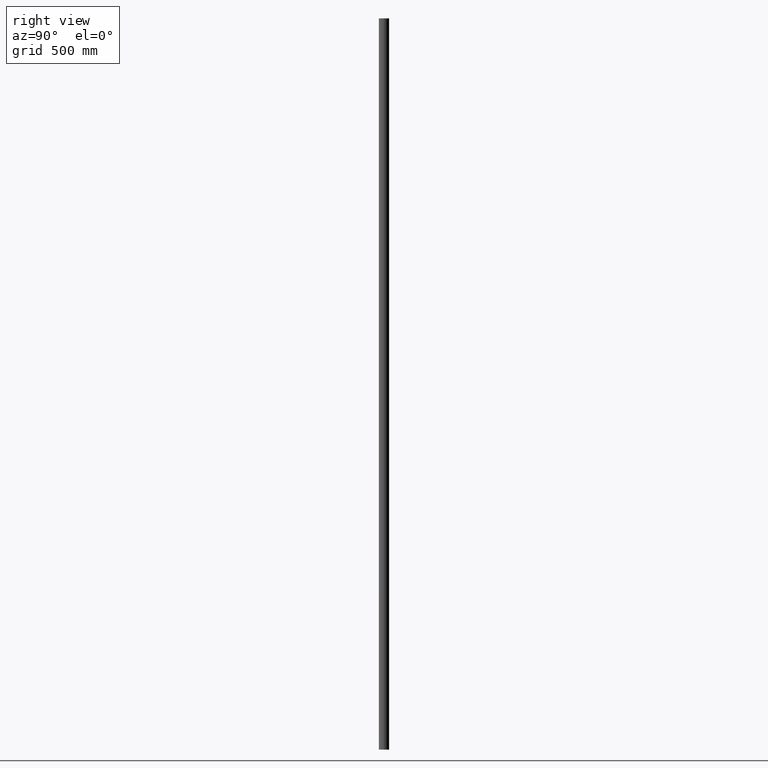
[diagram: clean part render]
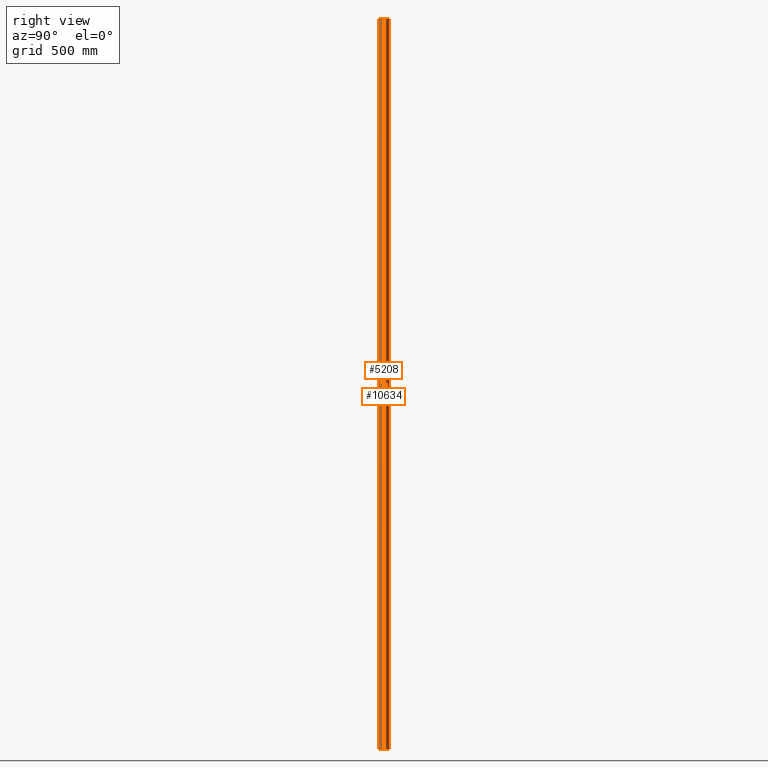
[diagram: same view with one multi-face feature highlighted, each face labeled with its STEP entity id]
A machine part, right view. The highlighted faces form ONE feature: a constant-radius fillet chain: 2 tangent blend faces with common blend radius 21 mm. The faces share edges in the B-rep.
Their STEP definitions:
[1] entity #10634 (Cylinder):
#251 = DIRECTION ( 'NONE',  ( 1.000000000000000000, 0.000000000000000000, 0.000000000000000000 ) ) ;
#441 = CARTESIAN_POINT ( 'NONE',  ( 0.000000000000000000, 0.000000000000000000, 1500.000000000000000 ) ) ;
#575 = DIRECTION ( 'NONE',  ( 0.000000000000000000, 0.000000000000000000, 1.000000000000000000 ) ) ;
#791 = VERTEX_POINT ( 'NONE', #5051 ) ;
#1075 = LINE ( 'NONE', #13153, #5709 ) ;
#1381 = CARTESIAN_POINT ( 'NONE',  ( 0.000000000000000000, 0.000000000000000000, -1500.000000000000000 ) ) ;
#1768 = VERTEX_POINT ( 'NONE', #1773 ) ;
#1773 = CARTESIAN_POINT ( 'NONE',  ( 21.00000000000000355, 2.571758278209442056E-15, -1500.000000000000000 ) ) ;
#3085 = AXIS2_PLACEMENT_3D ( 'NONE', #15375, #575, #10500 ) ;
#3515 = DIRECTION ( 'NONE',  ( -0.000000000000000000, -0.000000000000000000, -1.000000000000000000 ) ) ;
#3754 = DIRECTION ( 'NONE',  ( 0.000000000000000000, 0.000000000000000000, 1.000000000000000000 ) ) ;
#3766 = CIRCLE ( 'NONE', #3085, 21.00000000000000355 ) ;
#4019 = AXIS2_PLACEMENT_3D ( 'NONE', #441, #9131, #4206 ) ;
#4206 = DIRECTION ( 'NONE',  ( -1.000000000000000000, 0.000000000000000000, 0.000000000000000000 ) ) ;
#4341 = CARTESIAN_POINT ( 'NONE',  ( 21.00000000000000355, 2.571758278209442056E-15, 1500.000000000000000 ) ) ;
#5051 = CARTESIAN_POINT ( 'NONE',  ( -21.00000000000000355, 0.000000000000000000, -1500.000000000000000 ) ) ;
#5709 = VECTOR ( 'NONE', #6716, 1000.000000000000000 ) ;
#6461 = FACE_OUTER_BOUND ( 'NONE', #10838, .T. ) ;
#6466 = ORIENTED_EDGE ( 'NONE', *, *, #10397, .F. ) ;
#6716 = DIRECTION ( 'NONE',  ( -0.000000000000000000, -0.000000000000000000, -1.000000000000000000 ) ) ;
#9131 = DIRECTION ( 'NONE',  ( -0.000000000000000000, -0.000000000000000000, -1.000000000000000000 ) ) ;
#9212 = EDGE_CURVE ( 'NONE', #1768, #791, #12865, .T. ) ;
#9345 = VERTEX_POINT ( 'NONE', #4341 ) ;
#9425 = EDGE_CURVE ( 'NONE', #9345, #11478, #3766, .T. ) ;
#9445 = EDGE_CURVE ( 'NONE', #9345, #1768, #1075, .T. ) ;
#10397 = EDGE_CURVE ( 'NONE', #11478, #791, #12655, .T. ) ;
#10500 = DIRECTION ( 'NONE',  ( 1.000000000000000000, 0.000000000000000000, 0.000000000000000000 ) ) ;
#10634 = ADVANCED_FACE ( 'NONE', ( #6461 ), #14775, .T. ) ;
#10838 = EDGE_LOOP ( 'NONE', ( #15232, #15163, #12870, #6466 ) ) ;
#10872 = CARTESIAN_POINT ( 'NONE',  ( -21.00000000000000355, 0.000000000000000000, 1500.000000000000000 ) ) ;
#10922 = CARTESIAN_POINT ( 'NONE',  ( -21.00000000000000355, 0.000000000000000000, 1500.000000000000000 ) ) ;
#11305 = VECTOR ( 'NONE', #3515, 1000.000000000000000 ) ;
#11363 = AXIS2_PLACEMENT_3D ( 'NONE', #1381, #3754, #251 ) ;
#11478 = VERTEX_POINT ( 'NONE', #10872 ) ;
#12655 = LINE ( 'NONE', #10922, #11305 ) ;
#12865 = CIRCLE ( 'NONE', #11363, 21.00000000000000355 ) ;
#12870 = ORIENTED_EDGE ( 'NONE', *, *, #9212, .T. ) ;
#13153 = CARTESIAN_POINT ( 'NONE',  ( 21.00000000000000355, 2.571758278209442056E-15, 1500.000000000000000 ) ) ;
#14775 = CYLINDRICAL_SURFACE ( 'NONE', #4019, 21.00000000000000355 ) ;
#15163 = ORIENTED_EDGE ( 'NONE', *, *, #9445, .T. ) ;
#15232 = ORIENTED_EDGE ( 'NONE', *, *, #9425, .F. ) ;
#15375 = CARTESIAN_POINT ( 'NONE',  ( 0.000000000000000000, 0.000000000000000000, 1500.000000000000000 ) ) ;
[2] entity #5208 (Cylinder):
#134 = CARTESIAN_POINT ( 'NONE',  ( 0.000000000000000000, 0.000000000000000000, 1500.000000000000000 ) ) ;
#791 = VERTEX_POINT ( 'NONE', #5051 ) ;
#1075 = LINE ( 'NONE', #13153, #5709 ) ;
#1768 = VERTEX_POINT ( 'NONE', #1773 ) ;
#1773 = CARTESIAN_POINT ( 'NONE',  ( 21.00000000000000355, 2.571758278209442056E-15, -1500.000000000000000 ) ) ;
#2623 = CIRCLE ( 'NONE', #13111, 21.00000000000000355 ) ;
#2720 = DIRECTION ( 'NONE',  ( 0.000000000000000000, 0.000000000000000000, 1.000000000000000000 ) ) ;
#3515 = DIRECTION ( 'NONE',  ( -0.000000000000000000, -0.000000000000000000, -1.000000000000000000 ) ) ;
#3554 = CIRCLE ( 'NONE', #11682, 21.00000000000000355 ) ;
#3695 = EDGE_LOOP ( 'NONE', ( #12579, #14173, #8925, #13446 ) ) ;
#3908 = DIRECTION ( 'NONE',  ( 1.000000000000000000, 0.000000000000000000, 0.000000000000000000 ) ) ;
#4152 = DIRECTION ( 'NONE',  ( -0.000000000000000000, -0.000000000000000000, -1.000000000000000000 ) ) ;
#4341 = CARTESIAN_POINT ( 'NONE',  ( 21.00000000000000355, 2.571758278209442056E-15, 1500.000000000000000 ) ) ;
#5051 = CARTESIAN_POINT ( 'NONE',  ( -21.00000000000000355, 0.000000000000000000, -1500.000000000000000 ) ) ;
#5208 = ADVANCED_FACE ( 'NONE', ( #15960 ), #10939, .T. ) ;
#5427 = DIRECTION ( 'NONE',  ( 1.000000000000000000, 0.000000000000000000, 0.000000000000000000 ) ) ;
#5709 = VECTOR ( 'NONE', #6716, 1000.000000000000000 ) ;
#5777 = EDGE_CURVE ( 'NONE', #11478, #9345, #2623, .T. ) ;
#6470 = DIRECTION ( 'NONE',  ( -1.000000000000000000, 0.000000000000000000, 0.000000000000000000 ) ) ;
#6716 = DIRECTION ( 'NONE',  ( -0.000000000000000000, -0.000000000000000000, -1.000000000000000000 ) ) ;
#8925 = ORIENTED_EDGE ( 'NONE', *, *, #10397, .T. ) ;
#9345 = VERTEX_POINT ( 'NONE', #4341 ) ;
#9445 = EDGE_CURVE ( 'NONE', #9345, #1768, #1075, .T. ) ;
#10397 = EDGE_CURVE ( 'NONE', #11478, #791, #12655, .T. ) ;
#10872 = CARTESIAN_POINT ( 'NONE',  ( -21.00000000000000355, 0.000000000000000000, 1500.000000000000000 ) ) ;
#10922 = CARTESIAN_POINT ( 'NONE',  ( -21.00000000000000355, 0.000000000000000000, 1500.000000000000000 ) ) ;
#10939 = CYLINDRICAL_SURFACE ( 'NONE', #11239, 21.00000000000000355 ) ;
#11239 = AXIS2_PLACEMENT_3D ( 'NONE', #15130, #4152, #6470 ) ;
#11305 = VECTOR ( 'NONE', #3515, 1000.000000000000000 ) ;
#11430 = CARTESIAN_POINT ( 'NONE',  ( 0.000000000000000000, 0.000000000000000000, -1500.000000000000000 ) ) ;
#11478 = VERTEX_POINT ( 'NONE', #10872 ) ;
#11682 = AXIS2_PLACEMENT_3D ( 'NONE', #11430, #15056, #5427 ) ;
#12309 = EDGE_CURVE ( 'NONE', #791, #1768, #3554, .T. ) ;
#12579 = ORIENTED_EDGE ( 'NONE', *, *, #9445, .F. ) ;
#12655 = LINE ( 'NONE', #10922, #11305 ) ;
#13111 = AXIS2_PLACEMENT_3D ( 'NONE', #134, #2720, #3908 ) ;
#13153 = CARTESIAN_POINT ( 'NONE',  ( 21.00000000000000355, 2.571758278209442056E-15, 1500.000000000000000 ) ) ;
#13446 = ORIENTED_EDGE ( 'NONE', *, *, #12309, .T. ) ;
#14173 = ORIENTED_EDGE ( 'NONE', *, *, #5777, .F. ) ;
#15056 = DIRECTION ( 'NONE',  ( 0.000000000000000000, 0.000000000000000000, 1.000000000000000000 ) ) ;
#15130 = CARTESIAN_POINT ( 'NONE',  ( 0.000000000000000000, 0.000000000000000000, 1500.000000000000000 ) ) ;
#15960 = FACE_OUTER_BOUND ( 'NONE', #3695, .T. ) ;